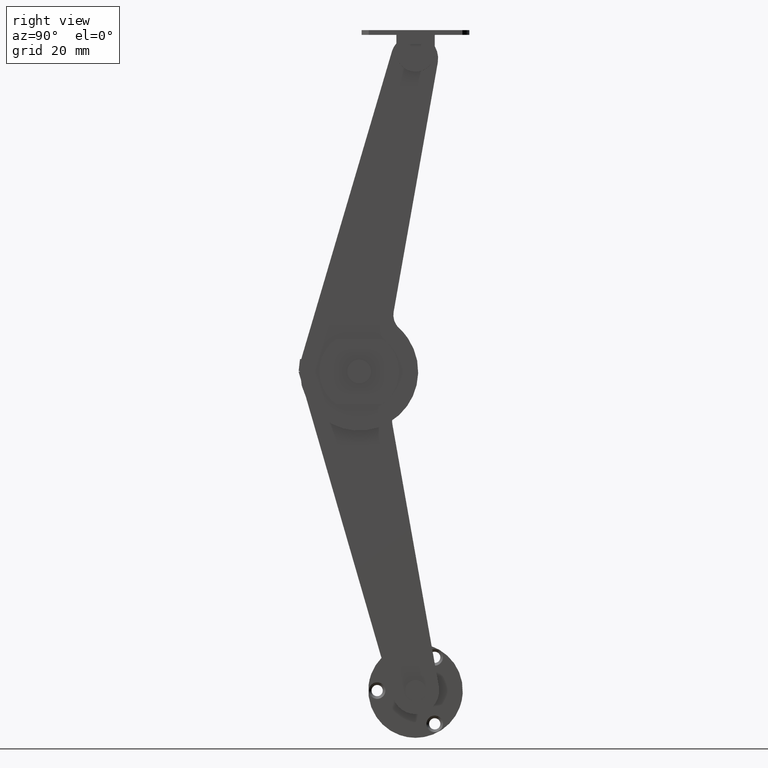
[diagram: clean part render]
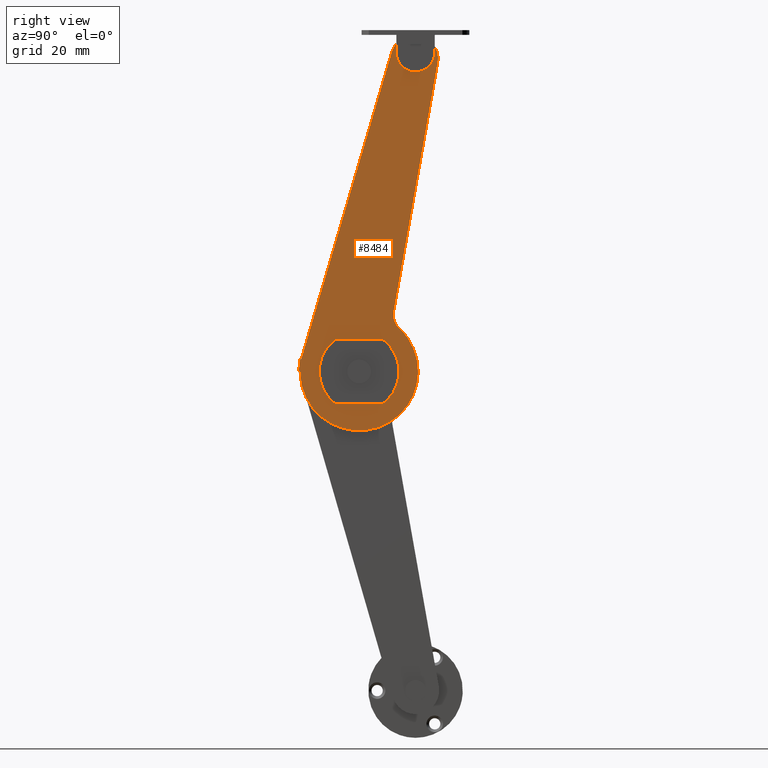
[diagram: same view with one face highlighted and labeled with its STEP entity id]
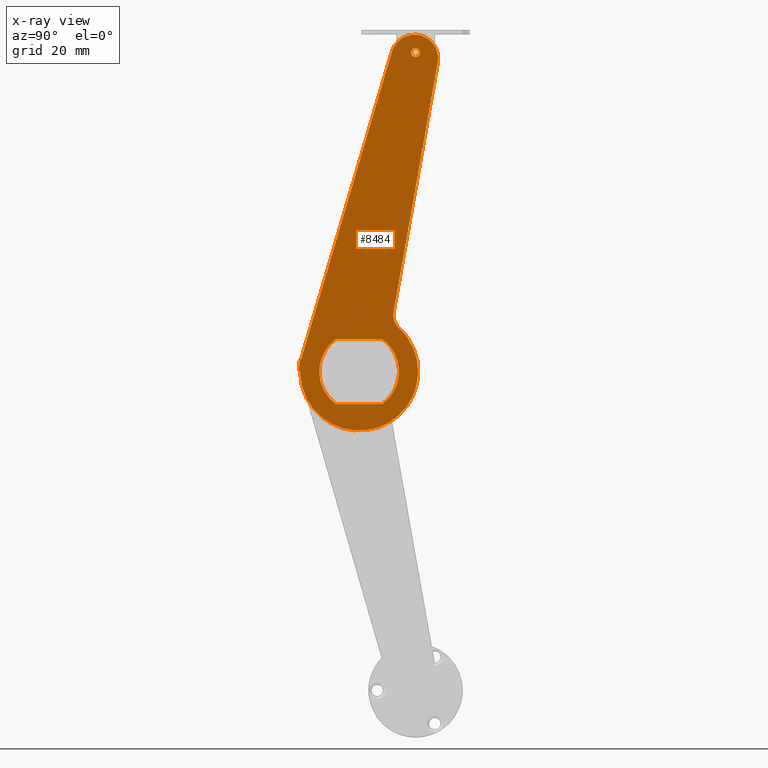
[diagram: x-ray of the same camera — body ghosted, the highlighted face saturated]
A machine part, right view. The second image highlights one B-rep face of the part: STEP entity #8484.
The next image is the same camera in x-ray: the body ghosted, the highlighted face saturated — about 0% of this face is hidden behind the body in this view.
In plain terms, the highlighted face is a freeform B-spline surface patch.
Its self-contained STEP definition (entity closure, byte-faithful):
#7915=CARTESIAN_POINT('',(8.899994000000000,-1.489514289157079,108.175922355253110));
#7916=VERTEX_POINT('',#7915);
#7917=CARTESIAN_POINT('',(8.899994000000000,0.0,106.498871000000190));
#7918=VERTEX_POINT('',#7917);
#7919=CARTESIAN_POINT('',(8.899994000000000,-1.489514289157079,108.175922355253050));
#7920=CARTESIAN_POINT('',(8.899994000000000,-1.500000000000000,108.087707182780290));
#7921=CARTESIAN_POINT('',(8.899994000000000,-1.500000000000000,107.998871000000190));
#7922=CARTESIAN_POINT('',(8.899994000000000,-1.500000000000000,106.498871000000190));
#7923=CARTESIAN_POINT('',(8.899994000000000,0.0,106.498871000000190));
#7931=(BOUNDED_CURVE()B_SPLINE_CURVE(2,(#7919,#7920,#7921,#7922,#7923),.UNSPECIFIED.,.F.,.U.)B_SPLINE_CURVE_WITH_KNOTS((3,2,3),(0.229562472774115,0.250000000000000,0.500000000000000),.UNSPECIFIED.)CURVE()GEOMETRIC_REPRESENTATION_ITEM()RATIONAL_B_SPLINE_CURVE((0.956026752734458,0.976055947464892,1.0,0.707106781186548,1.0))REPRESENTATION_ITEM(''));
#7932=EDGE_CURVE('',#7916,#7918,#7931,.T.);
#7934=CARTESIAN_POINT('',(8.899994000000000,1.497202197420230,107.907298187222390));
#7935=VERTEX_POINT('',#7934);
#7936=CARTESIAN_POINT('',(8.899994000000000,0.0,106.498871000000190));
#7937=CARTESIAN_POINT('',(8.899994000000000,1.411059093795234,106.498871000000190));
#7938=CARTESIAN_POINT('',(8.899994000000000,1.497202197420230,107.907298187222390));
#7946=(BOUNDED_CURVE()B_SPLINE_CURVE(2,(#7936,#7937,#7938),.UNSPECIFIED.,.F.,.U.)B_SPLINE_CURVE_WITH_KNOTS((3,3),(0.500000000000000,0.739332961440892),.UNSPECIFIED.)CURVE()GEOMETRIC_REPRESENTATION_ITEM()RATIONAL_B_SPLINE_CURVE((1.0,0.719603994221685,0.976072039956343))REPRESENTATION_ITEM(''));
#7947=EDGE_CURVE('',#7918,#7935,#7946,.T.);
#8014=CARTESIAN_POINT('',(8.899994000000000,0.0,109.498871000000190));
#8015=VERTEX_POINT('',#8014);
#8016=CARTESIAN_POINT('',(8.899994000000000,0.0,109.498871000000190));
#8017=CARTESIAN_POINT('',(8.899994000000000,-1.332261783040383,109.498871000000210));
#8018=CARTESIAN_POINT('',(8.899994000000000,-1.489514289157079,108.175922355253080));
#8026=(BOUNDED_CURVE()B_SPLINE_CURVE(2,(#8016,#8017,#8018),.UNSPECIFIED.,.F.,.U.)B_SPLINE_CURVE_WITH_KNOTS((3,3),(0.0,0.229562472774115),.UNSPECIFIED.)CURVE()GEOMETRIC_REPRESENTATION_ITEM()RATIONAL_B_SPLINE_CURVE((1.0,0.731050833721656,0.956026752734457))REPRESENTATION_ITEM(''));
#8027=EDGE_CURVE('',#8015,#7916,#8026,.T.);
#8061=CARTESIAN_POINT('',(8.899994000000000,1.497202197420230,107.907298187222380));
#8062=CARTESIAN_POINT('',(8.899994000000000,1.500000000000000,107.953041851567080));
#8063=CARTESIAN_POINT('',(8.899994000000000,1.500000000000000,107.998871000000190));
#8064=CARTESIAN_POINT('',(8.899994000000000,1.500000000000000,109.498871000000190));
#8065=CARTESIAN_POINT('',(8.899994000000000,0.0,109.498871000000190));
#8073=(BOUNDED_CURVE()B_SPLINE_CURVE(2,(#8061,#8062,#8063,#8064,#8065),.UNSPECIFIED.,.F.,.U.)B_SPLINE_CURVE_WITH_KNOTS((3,2,3),(0.739332961440893,0.750000000000000,1.0),.UNSPECIFIED.)CURVE()GEOMETRIC_REPRESENTATION_ITEM()RATIONAL_B_SPLINE_CURVE((0.976072039956345,0.987502786964864,1.0,0.707106781186548,1.0))REPRESENTATION_ITEM(''));
#8074=EDGE_CURVE('',#7935,#8015,#8073,.T.);
#8208=CARTESIAN_POINT('',(8.899994000000110,-11.275051362627041,11.000000000000160));
#8209=VERTEX_POINT('',#8208);
#8215=CARTESIAN_POINT('',(8.899994000000000,-26.927525921249000,11.000000000000160));
#8216=VERTEX_POINT('',#8215);
#8217=CARTESIAN_POINT('',(8.899994000000110,-11.275051362627041,11.000000000000160));
#8218=CARTESIAN_POINT('',(8.899994000000000,-26.927525921249000,11.000000000000160));
#8219=QUASI_UNIFORM_CURVE('',1,(#8217,#8218),.UNSPECIFIED.,.F.,.U.);
#8220=EDGE_CURVE('',#8209,#8216,#8219,.T.);
#8261=CARTESIAN_POINT('',(8.899994000000000,-11.275053346083340,-11.000002324628600));
#8262=VERTEX_POINT('',#8261);
#8268=CARTESIAN_POINT('',(8.899994000000000,-11.275053346083340,-11.000002324628610));
#8269=CARTESIAN_POINT('',(8.899994000000000,-5.601288764355561,-6.963256542469708));
#8270=CARTESIAN_POINT('',(8.899994000000000,-5.601288000000031,-0.000001481893103));
#8271=CARTESIAN_POINT('',(8.899994000000000,-5.601287235644501,6.963253578683498));
#8272=CARTESIAN_POINT('',(8.899994000000110,-11.275051362627041,11.000000000000160));
#8280=(BOUNDED_CURVE()B_SPLINE_CURVE(2,(#8268,#8269,#8270,#8271,#8272),.UNSPECIFIED.,.F.,.U.)B_SPLINE_CURVE_WITH_KNOTS((3,2,3),(0.0,0.500000000000000,1.0),.UNSPECIFIED.)CURVE()GEOMETRIC_REPRESENTATION_ITEM()RATIONAL_B_SPLINE_CURVE((1.0,0.888741012589558,1.0,0.888741012589558,1.0))REPRESENTATION_ITEM(''));
#8281=EDGE_CURVE('',#8262,#8209,#8280,.T.);
#8299=CARTESIAN_POINT('',(8.899994000000110,-26.927525921249199,-11.0));
#8300=VERTEX_POINT('',#8299);
#8306=CARTESIAN_POINT('',(8.899994000000110,-26.927525921249199,-11.0));
#8307=CARTESIAN_POINT('',(8.899994000000000,-11.275053346083340,-11.000002324628600));
#8308=QUASI_UNIFORM_CURVE('',1,(#8306,#8307),.UNSPECIFIED.,.F.,.U.);
#8309=EDGE_CURVE('',#8300,#8262,#8308,.T.);
#8345=CARTESIAN_POINT('',(8.899994000000000,-26.927525921248989,11.000000000000160));
#8346=CARTESIAN_POINT('',(8.899994000000000,-32.601287999999954,6.963253460285164));
#8347=CARTESIAN_POINT('',(8.899994000000000,-32.601287999999947,0.0));
#8348=CARTESIAN_POINT('',(8.899994000000000,-32.601287999999954,-6.963253460285001));
#8349=CARTESIAN_POINT('',(8.899994000000110,-26.927525921249199,-11.0));
#8357=(BOUNDED_CURVE()B_SPLINE_CURVE(2,(#8345,#8346,#8347,#8348,#8349),.UNSPECIFIED.,.F.,.U.)B_SPLINE_CURVE_WITH_KNOTS((3,2,3),(0.0,0.500000000000000,1.0),.UNSPECIFIED.)CURVE()GEOMETRIC_REPRESENTATION_ITEM()RATIONAL_B_SPLINE_CURVE((1.0,0.888741055510526,1.0,0.888741055510526,1.0))REPRESENTATION_ITEM(''));
#8358=EDGE_CURVE('',#8216,#8300,#8357,.T.);
#8364=CARTESIAN_POINT('',(8.899994000000110,-41.927852870386189,120.723846278082110));
#8365=CARTESIAN_POINT('',(8.899994000000110,10.011438490989240,120.723846278082110));
#8366=CARTESIAN_POINT('',(8.899994000000110,-41.927852870386189,-26.692277909738230));
#8367=CARTESIAN_POINT('',(8.899994000000110,10.011438490989240,-26.692277909738230));
#8368=B_SPLINE_SURFACE_WITH_KNOTS('',1,1,((#8364,#8366),(#8365,#8367)),.UNSPECIFIED.,.F.,.F.,.U.,(2,2),(2,2),(0.0,51.939291361375432),(0.0,147.416124187820290),.UNSPECIFIED.);
#8369=CARTESIAN_POINT('',(8.899994000000000,-39.116333000000047,4.251221000000101));
#8370=VERTEX_POINT('',#8369);
#8371=CARTESIAN_POINT('',(8.899994000000000,-39.569122999999998,0.276947000000005));
#8372=VERTEX_POINT('',#8371);
#8373=CARTESIAN_POINT('',(8.899994000000000,-39.116333000000047,4.251221000000101));
#8374=CARTESIAN_POINT('',(8.899994000000000,-39.569122999999998,0.276947000000005));
#8375=QUASI_UNIFORM_CURVE('',1,(#8373,#8374),.UNSPECIFIED.,.F.,.U.);
#8376=EDGE_CURVE('',#8370,#8372,#8375,.T.);
#8377=ORIENTED_EDGE('',*,*,#8376,.T.);
#8378=CARTESIAN_POINT('',(8.899994000000000,-39.101224153669037,0.050535622690257));
#8379=VERTEX_POINT('',#8378);
#8380=CARTESIAN_POINT('',(8.899994000000000,-39.569122999999998,0.276947000000005));
#8381=CARTESIAN_POINT('',(8.899994000000000,-39.101224153669037,0.050535622690257));
#8382=QUASI_UNIFORM_CURVE('',1,(#8380,#8381),.UNSPECIFIED.,.F.,.U.);
#8383=EDGE_CURVE('',#8372,#8379,#8382,.T.);
#8384=ORIENTED_EDGE('',*,*,#8383,.T.);
#8385=CARTESIAN_POINT('',(8.899994000000000,-5.569181175677129,14.726917019360000));
#8386=VERTEX_POINT('',#8385);
#8387=CARTESIAN_POINT('',(8.899994000000000,-39.101224153669023,0.050535622690254));
#8388=CARTESIAN_POINT('',(8.899994000000000,-39.140604229338713,-15.534490487463026));
#8389=CARTESIAN_POINT('',(8.899994000000000,-24.037715041322770,-19.381219983935399));
#8390=CARTESIAN_POINT('',(8.899994000000000,-8.934825853306833,-23.227949480407759));
#8391=CARTESIAN_POINT('',(8.899994000000000,-1.514000540250474,-9.522989016487363));
#8392=CARTESIAN_POINT('',(8.899994000000000,5.906824772805884,4.181971447433043));
#8393=CARTESIAN_POINT('',(8.899994000000000,-5.569181175677120,14.726917019360011));
#8401=(BOUNDED_CURVE()B_SPLINE_CURVE(2,(#8387,#8388,#8389,#8390,#8391,#8392,#8393),.UNSPECIFIED.,.F.,.U.)B_SPLINE_CURVE_WITH_KNOTS((3,2,2,3),(0.0,0.333333333333333,0.666666666666667,1.0),.UNSPECIFIED.)CURVE()GEOMETRIC_REPRESENTATION_ITEM()RATIONAL_B_SPLINE_CURVE((1.0,0.788787664420309,1.0,0.788787664420309,1.0,0.788787664420309,1.0))REPRESENTATION_ITEM(''));
#8402=EDGE_CURVE('',#8379,#8386,#8401,.T.);
#8403=ORIENTED_EDGE('',*,*,#8402,.T.);
#8404=CARTESIAN_POINT('',(8.899994000000000,-7.416105446805230,20.199800063666650));
#8405=VERTEX_POINT('',#8404);
#8406=CARTESIAN_POINT('',(8.899994000000000,-7.416105446805230,20.199800063666650));
#8407=CARTESIAN_POINT('',(8.899994000000000,-7.995348786758909,16.956244230352954));
#8408=CARTESIAN_POINT('',(8.899994000000000,-5.569181175677129,14.726917019360000));
#8416=(BOUNDED_CURVE()B_SPLINE_CURVE(2,(#8406,#8407,#8408),.UNSPECIFIED.,.F.,.U.)CURVE()GEOMETRIC_REPRESENTATION_ITEM()QUASI_UNIFORM_CURVE()RATIONAL_B_SPLINE_CURVE((1.0,0.876531985535471,1.0))REPRESENTATION_ITEM(''));
#8417=EDGE_CURVE('',#8405,#8386,#8416,.T.);
#8418=ORIENTED_EDGE('',*,*,#8417,.F.);
#8419=CARTESIAN_POINT('',(8.899994000000000,7.530242158632809,104.634787331276400));
#8420=VERTEX_POINT('',#8419);
#8421=CARTESIAN_POINT('',(8.899994000000000,-7.416105446805230,20.199800063666650));
#8422=CARTESIAN_POINT('',(8.899994000000000,7.530242158632809,104.634787331276400));
#8423=QUASI_UNIFORM_CURVE('',1,(#8421,#8422),.UNSPECIFIED.,.F.,.U.);
#8424=EDGE_CURVE('',#8405,#8420,#8423,.T.);
#8425=ORIENTED_EDGE('',*,*,#8424,.T.);
#8426=CARTESIAN_POINT('',(8.899994000000000,-6.499976638862320,111.142400101020800));
#8427=VERTEX_POINT('',#8426);
#8428=CARTESIAN_POINT('',(8.899994000000000,7.530242158632789,104.634787331276400));
#8429=CARTESIAN_POINT('',(8.899994000000000,8.603241529562462,110.696385180143200));
#8430=CARTESIAN_POINT('',(8.899994000000000,3.018869385264293,113.286575112443300));
#8431=CARTESIAN_POINT('',(8.899994000000000,-2.565502759033875,115.876765044743440));
#8432=CARTESIAN_POINT('',(8.899994000000000,-6.499976638862313,111.142400101020800));
#8440=(BOUNDED_CURVE()B_SPLINE_CURVE(2,(#8428,#8429,#8430,#8431,#8432),.UNSPECIFIED.,.F.,.U.)B_SPLINE_CURVE_WITH_KNOTS((3,2,3),(0.0,0.500000000000000,1.0),.UNSPECIFIED.)CURVE()GEOMETRIC_REPRESENTATION_ITEM()RATIONAL_B_SPLINE_CURVE((1.0,0.792528794551222,1.0,0.792528794551222,1.0))REPRESENTATION_ITEM(''));
#8441=EDGE_CURVE('',#8420,#8427,#8440,.T.);
#8442=ORIENTED_EDGE('',*,*,#8441,.T.);
#8443=CARTESIAN_POINT('',(8.899994000000000,-8.020661000000180,108.291901000000190));
#8444=VERTEX_POINT('',#8443);
#8445=CARTESIAN_POINT('',(8.899994000000000,-6.499976638862403,111.142400101020900));
#8446=CARTESIAN_POINT('',(8.899994000000000,-7.554172748338359,109.873915754887550));
#8447=CARTESIAN_POINT('',(8.899994000000000,-8.020661000000217,108.291901000000190));
#8455=(BOUNDED_CURVE()B_SPLINE_CURVE(2,(#8445,#8446,#8447),.UNSPECIFIED.,.F.,.U.)CURVE()GEOMETRIC_REPRESENTATION_ITEM()QUASI_UNIFORM_CURVE()RATIONAL_B_SPLINE_CURVE((1.0,0.979399972822811,1.0))REPRESENTATION_ITEM(''));
#8456=EDGE_CURVE('',#8427,#8444,#8455,.T.);
#8457=ORIENTED_EDGE('',*,*,#8456,.T.);
#8458=CARTESIAN_POINT('',(8.899994000000000,-38.712667673070349,4.205233777586670));
#8459=VERTEX_POINT('',#8458);
#8460=CARTESIAN_POINT('',(8.899994000000000,-8.020661000000180,108.291901000000190));
#8461=CARTESIAN_POINT('',(8.899994000000000,-38.712667673070349,4.205233777586670));
#8462=QUASI_UNIFORM_CURVE('',1,(#8460,#8461),.UNSPECIFIED.,.F.,.U.);
#8463=EDGE_CURVE('',#8444,#8459,#8462,.T.);
#8464=ORIENTED_EDGE('',*,*,#8463,.T.);
#8465=CARTESIAN_POINT('',(8.899994000000000,-38.712667673070349,4.205233777586670));
#8466=CARTESIAN_POINT('',(8.899994000000000,-39.116333000000047,4.251221000000101));
#8467=QUASI_UNIFORM_CURVE('',1,(#8465,#8466),.UNSPECIFIED.,.F.,.U.);
#8468=EDGE_CURVE('',#8459,#8370,#8467,.T.);
#8469=ORIENTED_EDGE('',*,*,#8468,.T.);
#8470=EDGE_LOOP('',(#8377,#8384,#8403,#8418,#8425,#8442,#8457,#8464,#8469));
#8471=FACE_OUTER_BOUND('',#8470,.T.);
#8472=ORIENTED_EDGE('',*,*,#8358,.F.);
#8473=ORIENTED_EDGE('',*,*,#8220,.F.);
#8474=ORIENTED_EDGE('',*,*,#8281,.F.);
#8475=ORIENTED_EDGE('',*,*,#8309,.F.);
#8476=EDGE_LOOP('',(#8472,#8473,#8474,#8475));
#8477=FACE_BOUND('',#8476,.T.);
#8478=ORIENTED_EDGE('',*,*,#7947,.F.);
#8479=ORIENTED_EDGE('',*,*,#7932,.F.);
#8480=ORIENTED_EDGE('',*,*,#8027,.F.);
#8481=ORIENTED_EDGE('',*,*,#8074,.F.);
#8482=EDGE_LOOP('',(#8478,#8479,#8480,#8481));
#8483=FACE_BOUND('',#8482,.T.);
#8484=ADVANCED_FACE('',(#8471,#8477,#8483),#8368,.F.);